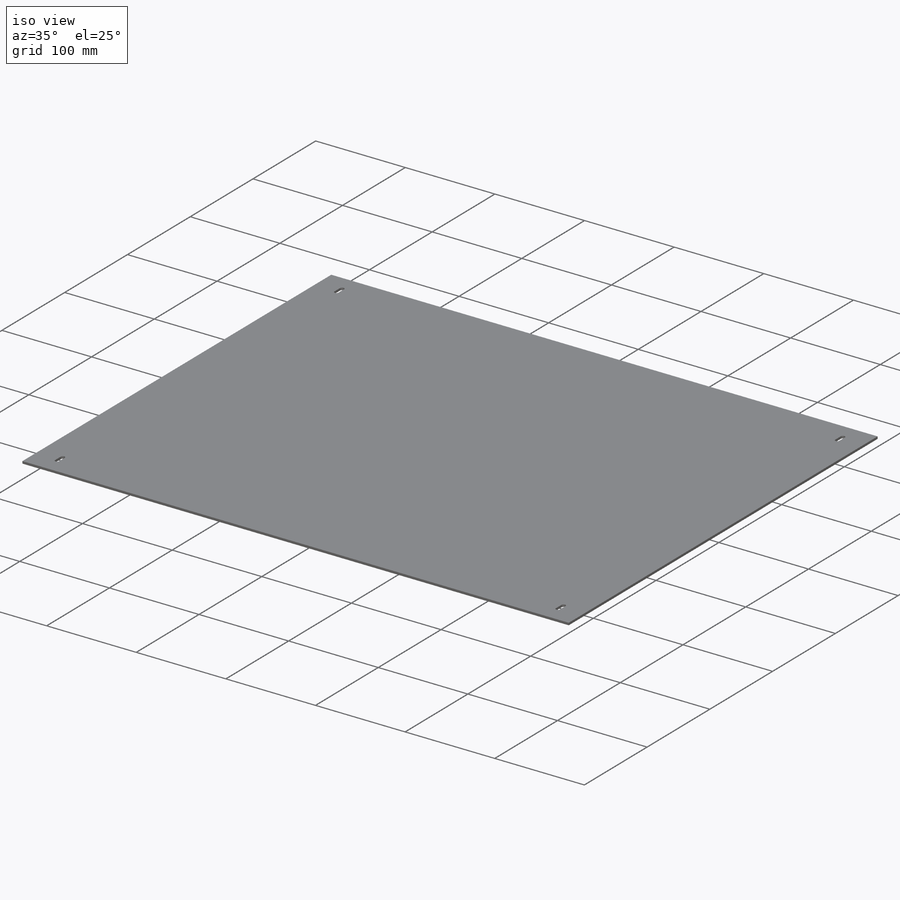
[diagram: iso view]
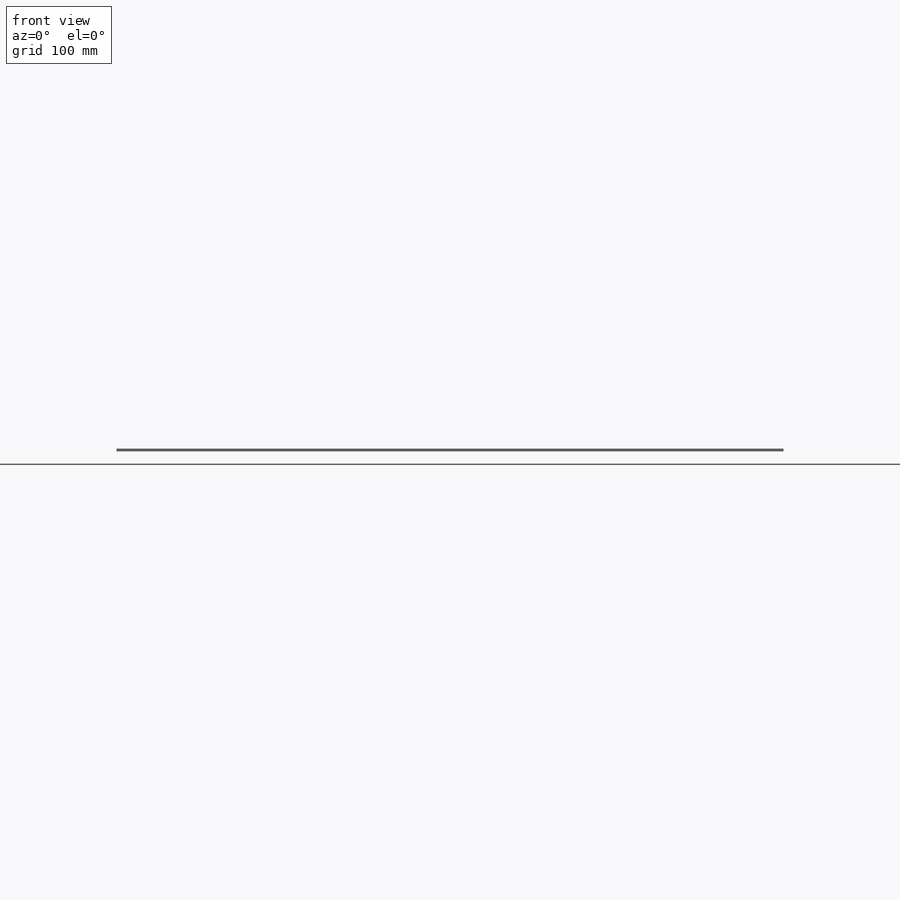
[diagram: front view]
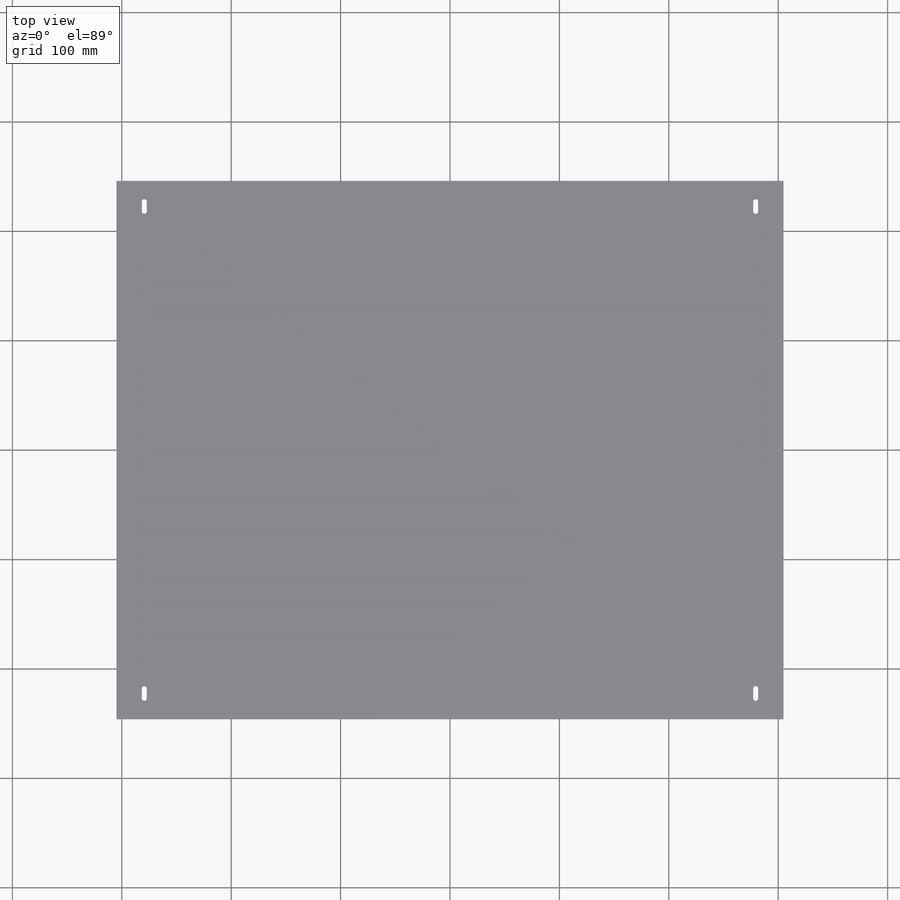
[diagram: top view]
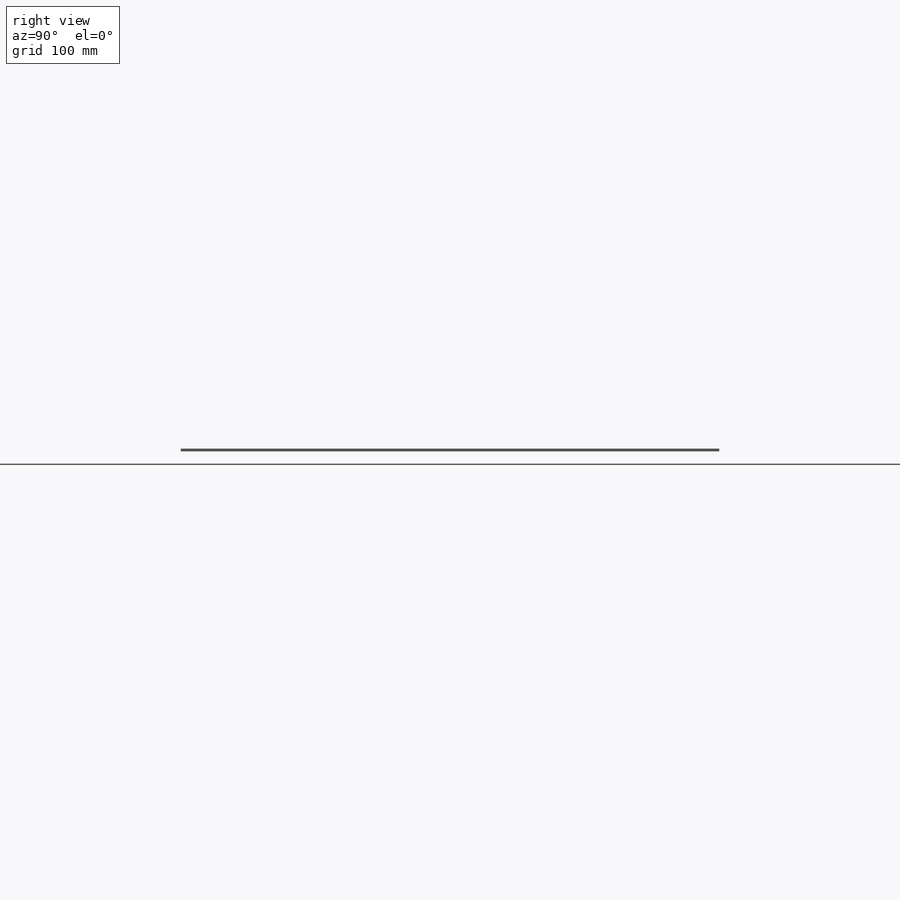
[diagram: right view]
SOLIDWORKS PART (.sldprt)
format: sldprt  version: not decoded by parser v0  size: 198,656 bytes
history: native  units: mm
features: sketch x4, cut_extrude x2, material x1, extrude x1 (+12 scaffold rows collapsed)
feature tree (20):
  scaffold x12  (default folders/planes/origin — collapsed)
  material  "Material <not specified>"
  sketch  "Sketch1"  dims[D1=715.772mm D2=492.125mm]
  extrude  "Boss-Extrude1"  Depth=2.54mm
  sketch  "Sketch2"  dims[D1=4.4958mm D2=19.05mm D3=8.89mm D4=19.05mm]
  cut_extrude  "Cut-Extrude1"  Depth=2.54mm
  sketch  "Sketch6"  dims[c1.D1=~178.59375mm c1.D2=8.89mm c1.D3=4.4958mm c1.D4=23.495mm c1.D5=~178.59375mm c2.D1=279.4mm]
  cut_extrude  "Cut-Extrude2"  [1 undecoded]
  sketch  "Sketch7"
decode coverage: 5 of 7 modeling features carry decoded parameters
note: ~ marks probable driven/reference dimensions
note: 1 parameter value undecoded
note: suppression state not decoded; provenance and decode notes live in map.json
